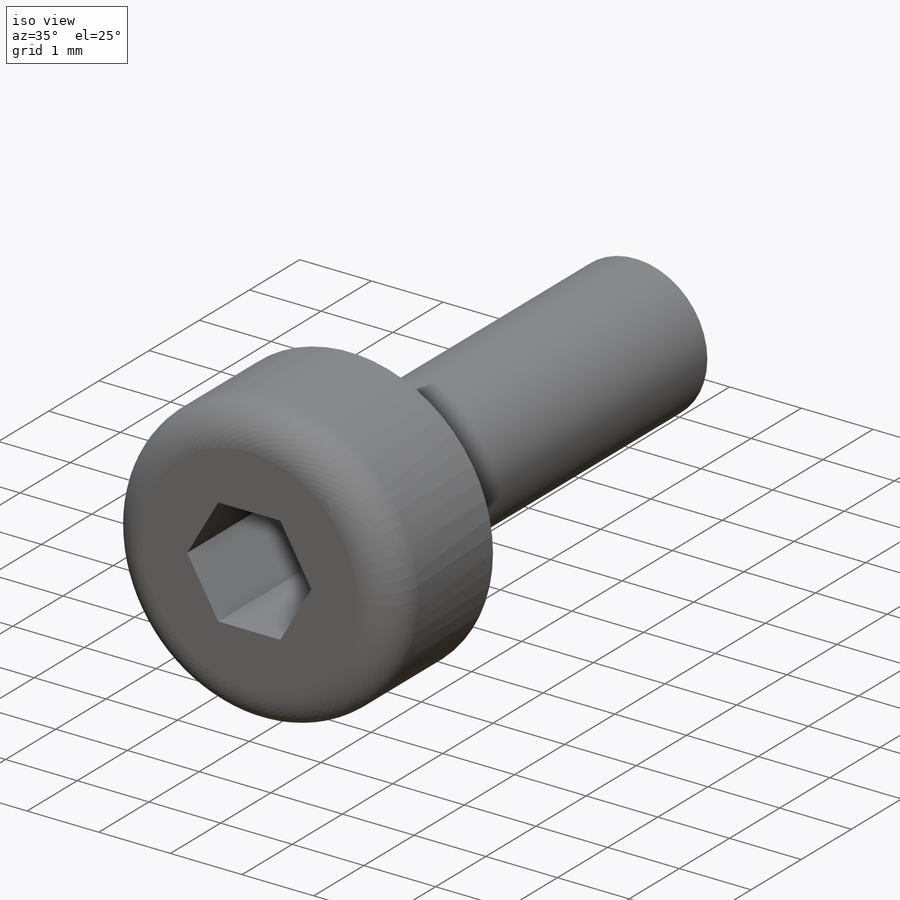
[diagram: iso view]
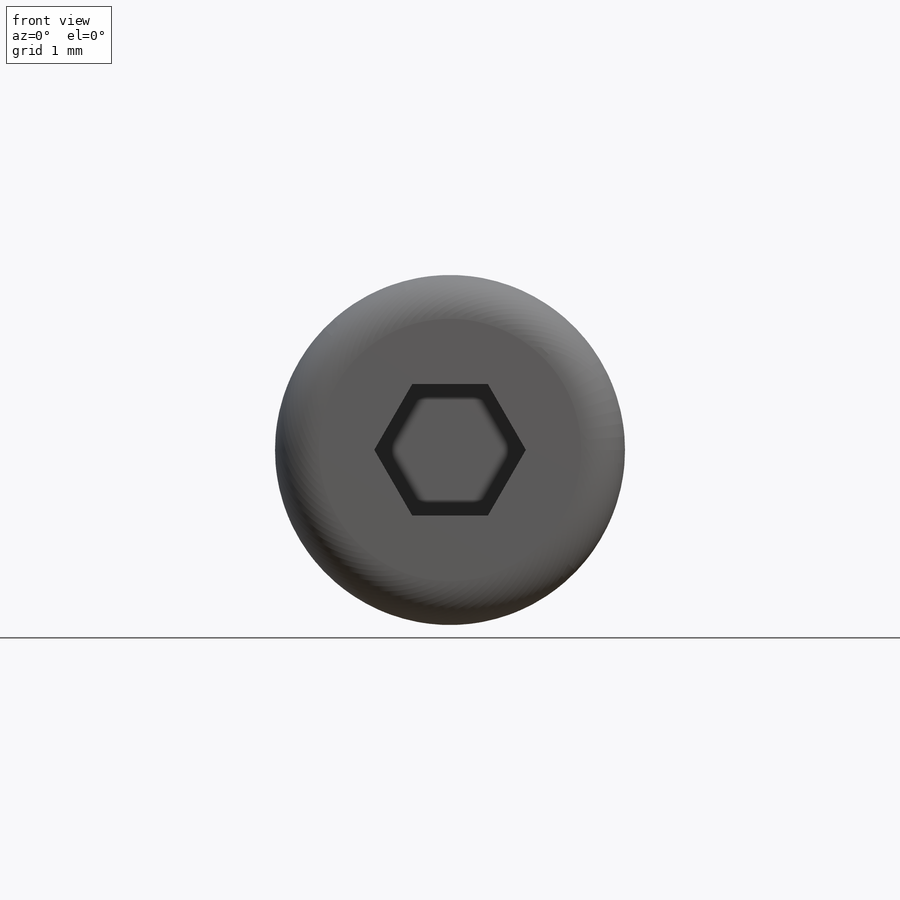
[diagram: front view]
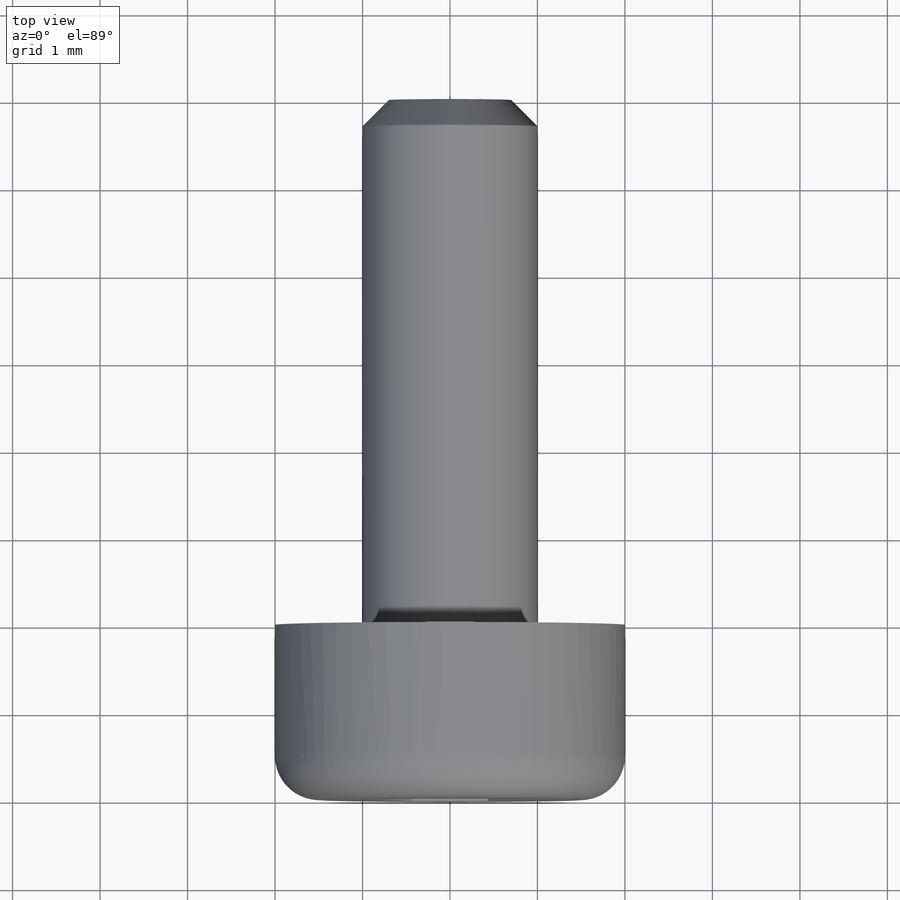
[diagram: top view]
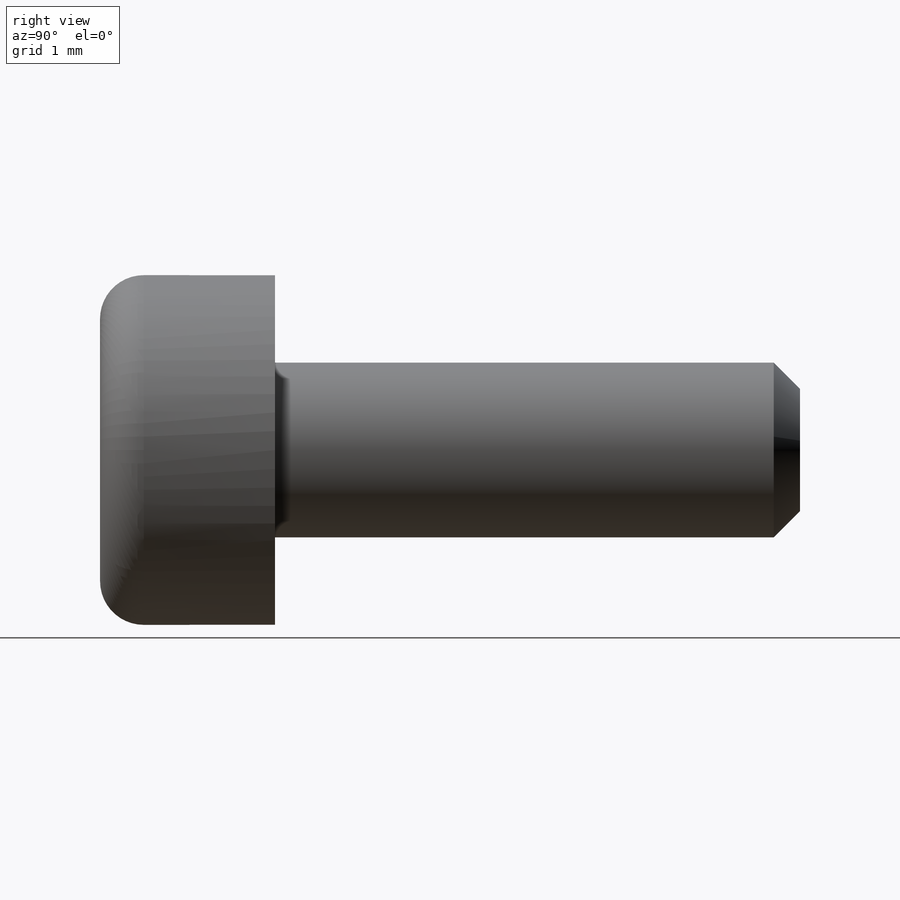
[diagram: right view]
SOLIDWORKS PART (.sldprt)
format: sldprt  version: not decoded by parser v0  size: 818,688 bytes
history: native  units: mm
features: plane x3, sketch x3, extrude x2, material x1, cut_extrude x1, chamfer x1, fillet x1 + 1 further entry (+11 scaffold rows collapsed)
feature tree (24):
  scaffold x11  (default folders/planes/origin — collapsed)
  material  "Ocel prostá uhlíková"
  plane  "Přední rovina"
  plane  "Horní rovina"
  plane  "Pravá rovina"
  "Konfigurační tabulka"
  sketch  "Skica1"  dims[D1=18.0mm D2=10.0mm]
  extrude  "Přidat vysunutím1"  Depth=2mm
  sketch  "Skica4"  dims[D1=1.5mm]
  cut_extrude  "Odebrat vysunutím1"  Depth=2mm
  sketch  "Skica2"  dims[D1=2.0mm]
  extrude  "Přidat vysunutím2"  Depth=6mm
  chamfer  "Zkosení1"  Distance=0.3mm Angle=45deg
  fillet  "Zaoblit1"  Radius=0.5mm
decode coverage: 8 of 8 modeling features carry decoded parameters; 1 rows unclassified (native names shown)
note: suppression state not decoded; provenance and decode notes live in map.json
